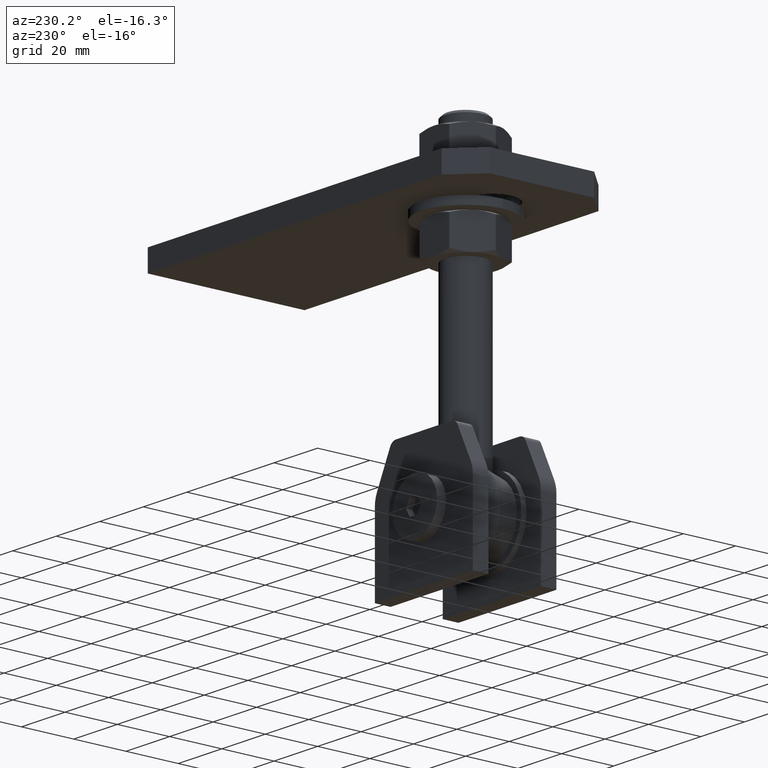
[diagram: clean part render]
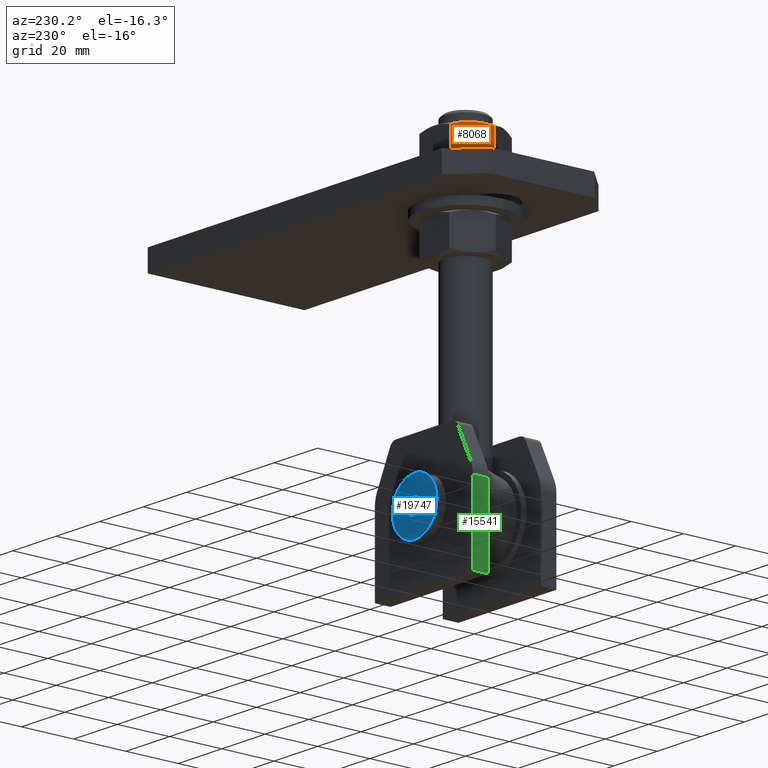
[diagram: same view with three faces highlighted in distinct colors, each labeled with its STEP entity id]
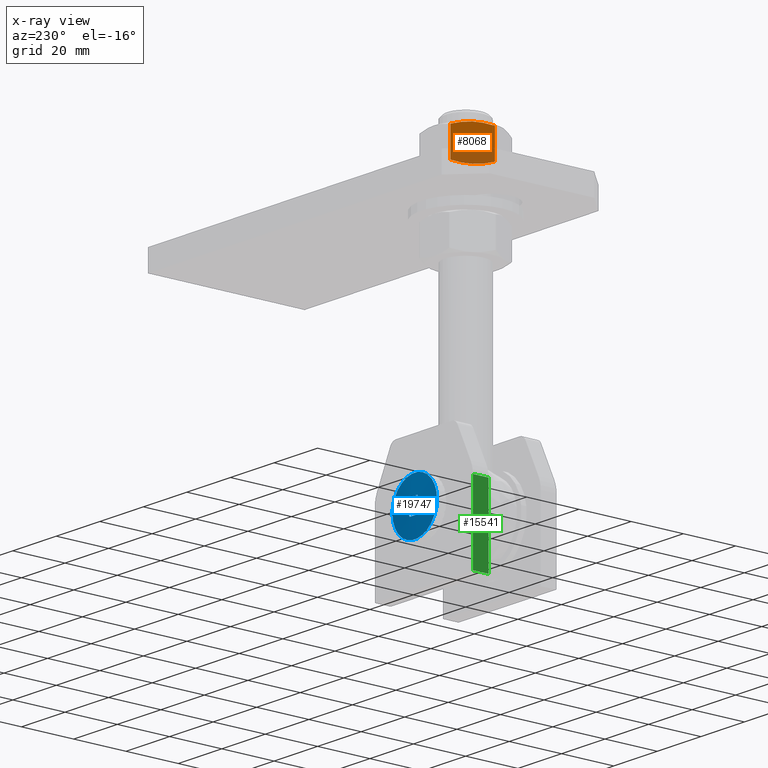
[diagram: x-ray of the same camera — body ghosted, the three highlighted faces saturated]
A machine part, auxiliary view with three faces highlighted in distinct colors.
The next image is the same camera in x-ray (body ghosted, the three faces saturated) — at least one of them is partly hidden behind the body in this view.
Their STEP definitions:

[orange] entity #8068 — the highlighted planar face has unit normal (0.866, -0.5, 0).
#124 = ORIENTED_EDGE ( 'NONE', *, *, #1491, .T. ) ;
#498 = CARTESIAN_POINT ( 'NONE',  ( 10.39230484541325339, 6.500000000000005329, -5.999999999999905853 ) ) ;
#572 = CARTESIAN_POINT ( 'NONE',  ( 7.615867869546622870, 5.813954435900758000, -10.80892990621402561 ) ) ;
#640 = CARTESIAN_POINT ( 'NONE',  ( 11.79426250169673374, 6.320028020092764542, -3.571738109256882954 ) ) ;
#714 = CARTESIAN_POINT ( 'NONE',  ( 13.17005630627477863, 5.813219605597447881, -1.188793338989194037 ) ) ;
#811 = B_SPLINE_CURVE_WITH_KNOTS ( 'NONE', 3,
 ( #14049, #5942, #14579, #12545, #17714, #14357 ),
 .UNSPECIFIED., .F., .F.,
 ( 4, 2, 4 ),
 ( 0.0002976420579474609376, 0.003654043546377303692, 0.007010445034807146446 ),
 .UNSPECIFIED. ) ;
#1491 = EDGE_CURVE ( 'NONE', #7172, #6281, #15491, .T. ) ;
#1914 = AXIS2_PLACEMENT_3D ( 'NONE', #16317, #7674, #14592 ) ;
#2296 = CARTESIAN_POINT ( 'NONE',  ( 8.163129901979157665, 6.062901251027051686, -9.861044260987466004 ) ) ;
#2932 = CARTESIAN_POINT ( 'NONE',  ( 10.39230484541325339, 6.500000000000005329, -5.999999999999905853 ) ) ;
#3340 = DIRECTION ( 'NONE',  ( 0.000000000000000000, -1.000000000000000000, -3.563579449361096515E-41 ) ) ;
#3829 = CARTESIAN_POINT ( 'NONE',  ( 9.268740651451423673, 6.406434174578367724, -7.946070269507164774 ) ) ;
#4096 = EDGE_CURVE ( 'NONE', #7424, #7172, #811, .T. ) ;
#4366 = CARTESIAN_POINT ( 'NONE',  ( 10.39230484541320898, -6.500000000000005329, -5.999999999999905853 ) ) ;
#4493 = VECTOR ( 'NONE', #7014, 1000.000000000000000 ) ;
#4954 = EDGE_CURVE ( 'NONE', #14689, #10347, #7861, .T. ) ;
#4993 = ORIENTED_EDGE ( 'NONE', *, *, #4954, .T. ) ;
#5558 = CARTESIAN_POINT ( 'NONE',  ( 10.39230484541325339, 6.500000000000005329, -5.999999999999905853 ) ) ;
#5701 = CARTESIAN_POINT ( 'NONE',  ( 10.95658457648190520, 6.476788126677478274, -5.022638836107869764 ) ) ;
#5942 = CARTESIAN_POINT ( 'NONE',  ( 13.16874182128003135, -5.813954435900753559, -1.191070093785878026 ) ) ;
#5943 = CARTESIAN_POINT ( 'NONE',  ( 9.828025114344749014, -6.476788126677480051, -6.977361163892044083 ) ) ;
#6264 = VERTEX_POINT ( 'NONE', #17389 ) ;
#6281 = VERTEX_POINT ( 'NONE', #15748 ) ;
#7014 = DIRECTION ( 'NONE',  ( -0.000000000000000000, 1.000000000000000000, 3.563579449361096515E-41 ) ) ;
#7172 = VERTEX_POINT ( 'NONE', #8598 ) ;
#7424 = VERTEX_POINT ( 'NONE', #12919 ) ;
#7489 = CARTESIAN_POINT ( 'NONE',  ( 11.51623569666512559, 6.386760395136403368, -4.053294661437687907 ) ) ;
#7674 = DIRECTION ( 'NONE',  ( -0.8660254037844353769, 0.000000000000000000, 0.5000000000000057732 ) ) ;
#7704 = EDGE_CURVE ( 'NONE', #10347, #7424, #12266, .T. ) ;
#7861 = B_SPLINE_CURVE_WITH_KNOTS ( 'NONE', 3,
 ( #498, #14242, #5701, #7489, #640, #12586, #714, #14314 ),
 .UNSPECIFIED., .F., .F.,
 ( 4, 2, 2, 4 ),
 ( 0.007010445034807143844, 0.008682192066603523078, 0.01035393909839990231, 0.01369743316199265905 ),
 .UNSPECIFIED. ) ;
#8068 = ADVANCED_FACE ( 'NONE', ( #12928 ), #16235, .F. ) ;
#8492 = EDGE_CURVE ( 'NONE', #6264, #14689, #20500, .T. ) ;
#8598 = CARTESIAN_POINT ( 'NONE',  ( 10.39230484541320898, -6.500000000000005329, -5.999999999999905853 ) ) ;
#9125 = CARTESIAN_POINT ( 'NONE',  ( 7.072540797572597349, 5.510220883462202401, -11.75000000000034994 ) ) ;
#9247 = ORIENTED_EDGE ( 'NONE', *, *, #4096, .T. ) ;
#9427 = ORIENTED_EDGE ( 'NONE', *, *, #8492, .T. ) ;
#9592 = CARTESIAN_POINT ( 'NONE',  ( 10.11082040635893620, -6.499999999999992006, -6.487545349982195120 ) ) ;
#10347 = VERTEX_POINT ( 'NONE', #19333 ) ;
#11629 = CARTESIAN_POINT ( 'NONE',  ( 7.614553384551888904, -5.813219605597460315, -10.81120666101069716 ) ) ;
#11727 = VECTOR ( 'NONE', #3340, 1000.000000000000000 ) ;
#11889 = CARTESIAN_POINT ( 'NONE',  ( 13.71206889325360656, 6.500000000000005329, -0.2499999999999979461 ) ) ;
#12266 = LINE ( 'NONE', #11889, #11727 ) ;
#12545 = CARTESIAN_POINT ( 'NONE',  ( 11.51586903937522877, -6.406434174578365948, -4.053929730492747296 ) ) ;
#12586 = CARTESIAN_POINT ( 'NONE',  ( 12.62355850601882246, 6.062063013138918599, -2.135355295257143293 ) ) ;
#12919 = CARTESIAN_POINT ( 'NONE',  ( 13.71206889325388545, -5.510220883462202401, -0.2499999999994522160 ) ) ;
#12928 = FACE_OUTER_BOUND ( 'NONE', #22129, .T. ) ;
#13889 = LINE ( 'NONE', #22214, #4493 ) ;
#14025 = ORIENTED_EDGE ( 'NONE', *, *, #7704, .T. ) ;
#14049 = CARTESIAN_POINT ( 'NONE',  ( 13.71206889325388545, -5.510220883462202401, -0.2499999999994522160 ) ) ;
#14242 = CARTESIAN_POINT ( 'NONE',  ( 10.67378928446771624, 6.499999999999990230, -5.512454650017721391 ) ) ;
#14314 = CARTESIAN_POINT ( 'NONE',  ( 13.71206889325360656, 5.510220883462368491, -0.2499999999999966971 ) ) ;
#14357 = CARTESIAN_POINT ( 'NONE',  ( 10.39230484541320898, -6.500000000000005329, -5.999999999999905853 ) ) ;
#14487 = ORIENTED_EDGE ( 'NONE', *, *, #20423, .T. ) ;
#14579 = CARTESIAN_POINT ( 'NONE',  ( 12.62147978884750366, -6.062901251027049021, -2.138955739012444290 ) ) ;
#14592 = DIRECTION ( 'NONE',  ( 0.5000000000000057732, 0.000000000000000000, 0.8660254037844353769 ) ) ;
#14689 = VERTEX_POINT ( 'NONE', #2932 ) ;
#15491 = B_SPLINE_CURVE_WITH_KNOTS ( 'NONE', 3,
 ( #4366, #9592, #5943, #16380, #18072, #19787, #11629, #21795 ),
 .UNSPECIFIED., .F., .F.,
 ( 4, 2, 2, 4 ),
 ( 0.007010445034807146446, 0.008682192066603523078, 0.01035393909839989884, 0.01369743316199264344 ),
 .UNSPECIFIED. ) ;
#15748 = CARTESIAN_POINT ( 'NONE',  ( 7.072540797572914428, -5.510220883462368491, -11.74999999999980638 ) ) ;
#16235 = PLANE ( 'NONE',  #1914 ) ;
#16317 = CARTESIAN_POINT ( 'NONE',  ( 13.85640646055101399, 6.500000000000005329, -3.778976134870717955E-15 ) ) ;
#16380 = CARTESIAN_POINT ( 'NONE',  ( 9.268373994161533957, -6.386760395136403368, -7.946705338562219723 ) ) ;
#17389 = CARTESIAN_POINT ( 'NONE',  ( 7.072540797572597349, 5.510220883462202401, -11.75000000000034994 ) ) ;
#17714 = CARTESIAN_POINT ( 'NONE',  ( 10.95744704231423050, -6.499999999999992895, -5.021145001466486235 ) ) ;
#18072 = CARTESIAN_POINT ( 'NONE',  ( 8.990347189129924033, -6.320028020092768095, -8.428261890743023343 ) ) ;
#19101 = CARTESIAN_POINT ( 'NONE',  ( 9.827162648512421939, 6.499999999999992895, -6.978854998533428500 ) ) ;
#19333 = CARTESIAN_POINT ( 'NONE',  ( 13.71206889325360656, 5.510220883462368491, -0.2499999999999966971 ) ) ;
#19787 = CARTESIAN_POINT ( 'NONE',  ( 8.161051184807838865, -6.062063013138925704, -9.864644704742756787 ) ) ;
#20423 = EDGE_CURVE ( 'NONE', #6281, #6264, #13889, .T. ) ;
#20500 = B_SPLINE_CURVE_WITH_KNOTS ( 'NONE', 3,
 ( #9125, #572, #2296, #3829, #19101, #5558 ),
 .UNSPECIFIED., .F., .F.,
 ( 4, 2, 4 ),
 ( 0.0002976420579474690692, 0.003654043546377306727, 0.007010445034807143844 ),
 .UNSPECIFIED. ) ;
#21795 = CARTESIAN_POINT ( 'NONE',  ( 7.072540797572914428, -5.510220883462368491, -11.74999999999980638 ) ) ;
#22129 = EDGE_LOOP ( 'NONE', ( #4993, #14025, #9247, #124, #14487, #9427 ) ) ;
#22214 = CARTESIAN_POINT ( 'NONE',  ( 7.072540797572910876, 6.500000000000005329, -11.74999999999980815 ) ) ;

[blue] entity #19747 — the highlighted spherical surface has radius 105.312 mm.
#395 = DIRECTION ( 'NONE',  ( -0.5000000000000002220, -6.301508131676953390E-14, -0.8660254037844384856 ) ) ;
#575 = ORIENTED_EDGE ( 'NONE', *, *, #2548, .F. ) ;
#722 = VERTEX_POINT ( 'NONE', #15610 ) ;
#1548 = DIRECTION ( 'NONE',  ( 1.251928832280966435E-16, 0.000000000000000000, 1.000000000000000000 ) ) ;
#1681 = AXIS2_PLACEMENT_3D ( 'NONE', #17834, #16279, #12826 ) ;
#1938 = ORIENTED_EDGE ( 'NONE', *, *, #14842, .F. ) ;
#2548 = EDGE_CURVE ( 'NONE', #13841, #13841, #19636, .T. ) ;
#2637 = EDGE_CURVE ( 'NONE', #6530, #22065, #20958, .T. ) ;
#3180 = CIRCLE ( 'NONE', #17661, 105.2697613574289477 ) ;
#3873 = CARTESIAN_POINT ( 'NONE',  ( 2.598076211353320453, -86.31250000000021316, -1.499999999999995781 ) ) ;
#4580 = VERTEX_POINT ( 'NONE', #15031 ) ;
#4890 = CIRCLE ( 'NONE', #21432, 105.2697613574289761 ) ;
#5097 = DIRECTION ( 'NONE',  ( -1.000000000000000000, -6.301508131676955914E-14, 1.235912944235804618E-16 ) ) ;
#5781 = CARTESIAN_POINT ( 'NONE',  ( 3.464101615137757495, 18.94301128682049296, -1.084202172485504434E-15 ) ) ;
#5790 = VERTEX_POINT ( 'NONE', #8566 ) ;
#6004 = DIRECTION ( 'NONE',  ( 1.000000000000000000, -1.317772136053595696E-16, 0.000000000000000000 ) ) ;
#6530 = VERTEX_POINT ( 'NONE', #11386 ) ;
#6978 = VERTEX_POINT ( 'NONE', #13413 ) ;
#7551 = CARTESIAN_POINT ( 'NONE',  ( 2.316217725939337712E-15, 18.49999999999998934, 0.000000000000000000 ) ) ;
#7983 = EDGE_CURVE ( 'NONE', #22065, #6978, #4890, .T. ) ;
#8566 = CARTESIAN_POINT ( 'NONE',  ( -3.464101615137752166, 18.94301128682049296, 4.336808689942017736E-16 ) ) ;
#8656 = ORIENTED_EDGE ( 'NONE', *, *, #2637, .F. ) ;
#8754 = DIRECTION ( 'NONE',  ( 0.8660254037844387076, -0.000000000000000000, -0.5000000000000002220 ) ) ;
#8794 = CIRCLE ( 'NONE', #1681, 105.2697613574289477 ) ;
#8819 = AXIS2_PLACEMENT_3D ( 'NONE', #20189, #8754, #16803 ) ;
#9075 = EDGE_CURVE ( 'NONE', #5790, #4580, #21700, .T. ) ;
#9240 = DIRECTION ( 'NONE',  ( 0.8660254037844387076, 0.000000000000000000, 0.5000000000000001110 ) ) ;
#9262 = DIRECTION ( 'NONE',  ( 1.000000000000000000, 0.000000000000000000, 0.000000000000000000 ) ) ;
#9306 = FACE_OUTER_BOUND ( 'NONE', #15880, .T. ) ;
#9312 = CARTESIAN_POINT ( 'NONE',  ( -2.598076211353309795, -86.31250000000021316, -1.500000000000004885 ) ) ;
#9780 = CARTESIAN_POINT ( 'NONE',  ( 2.598076211353321341, -86.31250000000021316, 1.499999999999994449 ) ) ;
#11386 = CARTESIAN_POINT ( 'NONE',  ( 1.732050807568879858, 18.94301128682049296, 3.000000000000000444 ) ) ;
#11723 = CIRCLE ( 'NONE', #20248, 105.2697613574289619 ) ;
#12450 = ORIENTED_EDGE ( 'NONE', *, *, #9075, .F. ) ;
#12557 = DIRECTION ( 'NONE',  ( -0.8660254037844387076, -0.000000000000000000, 0.5000000000000003331 ) ) ;
#12826 = DIRECTION ( 'NONE',  ( 1.000000000000000000, -6.301508131676955914E-14, 0.000000000000000000 ) ) ;
#12861 = DIRECTION ( 'NONE',  ( -0.5000000000000001110, -6.301508131676954652E-14, 0.8660254037844385966 ) ) ;
#13413 = CARTESIAN_POINT ( 'NONE',  ( 1.732050807568878970, 18.94301128682049296, -3.000000000000000000 ) ) ;
#13480 = CARTESIAN_POINT ( 'NONE',  ( 1.367399481773012244E-14, -86.31250000000021316, -3.000000000000000000 ) ) ;
#13481 = AXIS2_PLACEMENT_3D ( 'NONE', #7551, #14398, #9262 ) ;
#13552 = EDGE_CURVE ( 'NONE', #4580, #6530, #8794, .T. ) ;
#13563 = EDGE_LOOP ( 'NONE', ( #14572, #8656, #20544, #12450, #18340, #1938 ) ) ;
#13841 = VERTEX_POINT ( 'NONE', #19886 ) ;
#14267 = DIRECTION ( 'NONE',  ( -0.000000000000000000, 0.000000000000000000, 1.000000000000000000 ) ) ;
#14398 = DIRECTION ( 'NONE',  ( -1.252009581588831962E-16, -1.000000000000000000, -0.000000000000000000 ) ) ;
#14451 = FACE_OUTER_BOUND ( 'NONE', #13563, .T. ) ;
#14572 = ORIENTED_EDGE ( 'NONE', *, *, #7983, .F. ) ;
#14842 = EDGE_CURVE ( 'NONE', #6978, #722, #3180, .T. ) ;
#15031 = CARTESIAN_POINT ( 'NONE',  ( -1.732050807568874529, 18.94301128682049296, 3.000000000000000000 ) ) ;
#15527 = SPHERICAL_SURFACE ( 'NONE', #20111, 105.3125000000001990 ) ;
#15610 = CARTESIAN_POINT ( 'NONE',  ( -1.732050807568874307, 18.94301128682049296, -2.999999999999998668 ) ) ;
#15880 = EDGE_LOOP ( 'NONE', ( #575 ) ) ;
#16279 = DIRECTION ( 'NONE',  ( 0.000000000000000000, -0.000000000000000000, -1.000000000000000000 ) ) ;
#16293 = CARTESIAN_POINT ( 'NONE',  ( 1.404957346741441077E-14, -86.31250000000021316, 0.000000000000000000 ) ) ;
#16803 = DIRECTION ( 'NONE',  ( 0.5000000000000001110, -6.301508131676953390E-14, 0.8660254037844384856 ) ) ;
#17661 = AXIS2_PLACEMENT_3D ( 'NONE', #13480, #1548, #5097 ) ;
#17834 = CARTESIAN_POINT ( 'NONE',  ( 1.404957346741441077E-14, -86.31250000000021316, 3.000000000000000000 ) ) ;
#18340 = ORIENTED_EDGE ( 'NONE', *, *, #18413, .F. ) ;
#18413 = EDGE_CURVE ( 'NONE', #722, #5790, #11723, .T. ) ;
#18572 = DIRECTION ( 'NONE',  ( 0.4999999999999997780, -6.301508131676954652E-14, -0.8660254037844387076 ) ) ;
#19636 = CIRCLE ( 'NONE', #13481, 10.25000000000000000 ) ;
#19747 = ADVANCED_FACE ( 'NONE', ( #14451, #9306 ), #15527, .T. ) ;
#19886 = CARTESIAN_POINT ( 'NONE',  ( 10.25000000000000178, 18.49999999999998934, 0.000000000000000000 ) ) ;
#20111 = AXIS2_PLACEMENT_3D ( 'NONE', #16293, #14267, #6004 ) ;
#20189 = CARTESIAN_POINT ( 'NONE',  ( -2.598076211353310239, -86.31250000000021316, 1.500000000000005551 ) ) ;
#20248 = AXIS2_PLACEMENT_3D ( 'NONE', #9312, #9240, #12861 ) ;
#20350 = AXIS2_PLACEMENT_3D ( 'NONE', #9780, #21765, #18572 ) ;
#20544 = ORIENTED_EDGE ( 'NONE', *, *, #13552, .F. ) ;
#20958 = CIRCLE ( 'NONE', #20350, 105.2697613574289619 ) ;
#21432 = AXIS2_PLACEMENT_3D ( 'NONE', #3873, #12557, #395 ) ;
#21700 = CIRCLE ( 'NONE', #8819, 105.2697613574289761 ) ;
#21765 = DIRECTION ( 'NONE',  ( -0.8660254037844388186, -0.000000000000000000, -0.4999999999999998890 ) ) ;
#22065 = VERTEX_POINT ( 'NONE', #5781 ) ;

[green] entity #15541 — the highlighted planar face has unit normal (1, 0, 0).
#454 = DIRECTION ( 'NONE',  ( -0.000000000000000000, -0.000000000000000000, 1.000000000000000000 ) ) ;
#581 = VERTEX_POINT ( 'NONE', #19293 ) ;
#2065 = VECTOR ( 'NONE', #10469, 1000.000000000000000 ) ;
#2239 = EDGE_LOOP ( 'NONE', ( #21736, #13758, #22142, #4512 ) ) ;
#3137 = VERTEX_POINT ( 'NONE', #10658 ) ;
#4405 = EDGE_CURVE ( 'NONE', #4429, #3137, #11810, .T. ) ;
#4429 = VERTEX_POINT ( 'NONE', #7580 ) ;
#4501 = LINE ( 'NONE', #20353, #15515 ) ;
#4512 = ORIENTED_EDGE ( 'NONE', *, *, #6607, .T. ) ;
#4541 = LINE ( 'NONE', #11344, #9903 ) ;
#6607 = EDGE_CURVE ( 'NONE', #4429, #19625, #15790, .T. ) ;
#7225 = CARTESIAN_POINT ( 'NONE',  ( -22.50000000000000000, 2.999999999999999112, 5.500000000000001776 ) ) ;
#7580 = CARTESIAN_POINT ( 'NONE',  ( -22.50000000000000000, 2.999999999999999112, -24.00000000000000000 ) ) ;
#8532 = DIRECTION ( 'NONE',  ( -0.000000000000000000, -1.000000000000000000, -0.000000000000000000 ) ) ;
#9903 = VECTOR ( 'NONE', #18095, 1000.000000000000000 ) ;
#10013 = DIRECTION ( 'NONE',  ( 0.000000000000000000, 0.000000000000000000, -1.000000000000000000 ) ) ;
#10404 = CARTESIAN_POINT ( 'NONE',  ( -22.50000000000000000, 2.999999999999999112, -24.00000000000000000 ) ) ;
#10469 = DIRECTION ( 'NONE',  ( -0.000000000000000000, -1.000000000000000000, -0.000000000000000000 ) ) ;
#10658 = CARTESIAN_POINT ( 'NONE',  ( -22.50000000000000000, 2.999999999999999112, 5.500000000000002665 ) ) ;
#10715 = EDGE_CURVE ( 'NONE', #3137, #581, #4501, .T. ) ;
#11344 = CARTESIAN_POINT ( 'NONE',  ( -22.50000000000000000, -2.999999999999999112, 5.500000000000001776 ) ) ;
#11595 = DIRECTION ( 'NONE',  ( 1.000000000000000000, -0.000000000000000000, 0.000000000000000000 ) ) ;
#11810 = LINE ( 'NONE', #7225, #13975 ) ;
#12298 = FACE_OUTER_BOUND ( 'NONE', #2239, .T. ) ;
#13520 = CARTESIAN_POINT ( 'NONE',  ( -22.50000000000000000, -2.999999999999999112, -24.00000000000000000 ) ) ;
#13758 = ORIENTED_EDGE ( 'NONE', *, *, #10715, .F. ) ;
#13975 = VECTOR ( 'NONE', #454, 1000.000000000000000 ) ;
#15374 = AXIS2_PLACEMENT_3D ( 'NONE', #18723, #11595, #10013 ) ;
#15515 = VECTOR ( 'NONE', #8532, 1000.000000000000000 ) ;
#15541 = ADVANCED_FACE ( 'NONE', ( #12298 ), #22056, .F. ) ;
#15790 = LINE ( 'NONE', #10404, #2065 ) ;
#15983 = EDGE_CURVE ( 'NONE', #19625, #581, #4541, .T. ) ;
#18095 = DIRECTION ( 'NONE',  ( -0.000000000000000000, -0.000000000000000000, 1.000000000000000000 ) ) ;
#18723 = CARTESIAN_POINT ( 'NONE',  ( -22.50000000000000000, 2.999999999999999112, 5.500000000000001776 ) ) ;
#19293 = CARTESIAN_POINT ( 'NONE',  ( -22.50000000000000000, -2.999999999999999112, 5.500000000000002665 ) ) ;
#19625 = VERTEX_POINT ( 'NONE', #13520 ) ;
#20353 = CARTESIAN_POINT ( 'NONE',  ( -22.50000000000000000, 2.999999999999999112, 5.500000000000002665 ) ) ;
#21736 = ORIENTED_EDGE ( 'NONE', *, *, #15983, .T. ) ;
#22056 = PLANE ( 'NONE',  #15374 ) ;
#22142 = ORIENTED_EDGE ( 'NONE', *, *, #4405, .F. ) ;